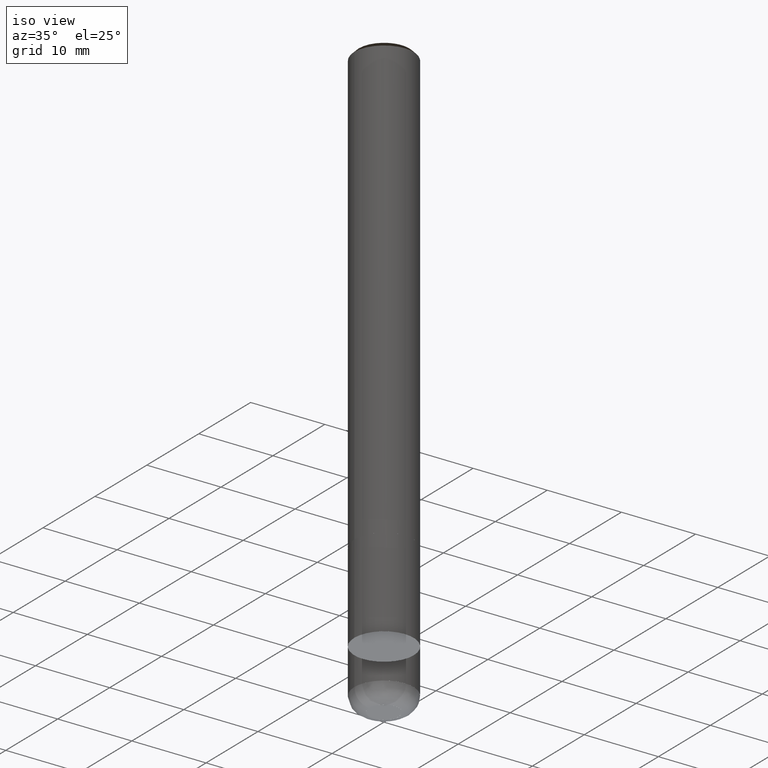
[diagram: clean part render]
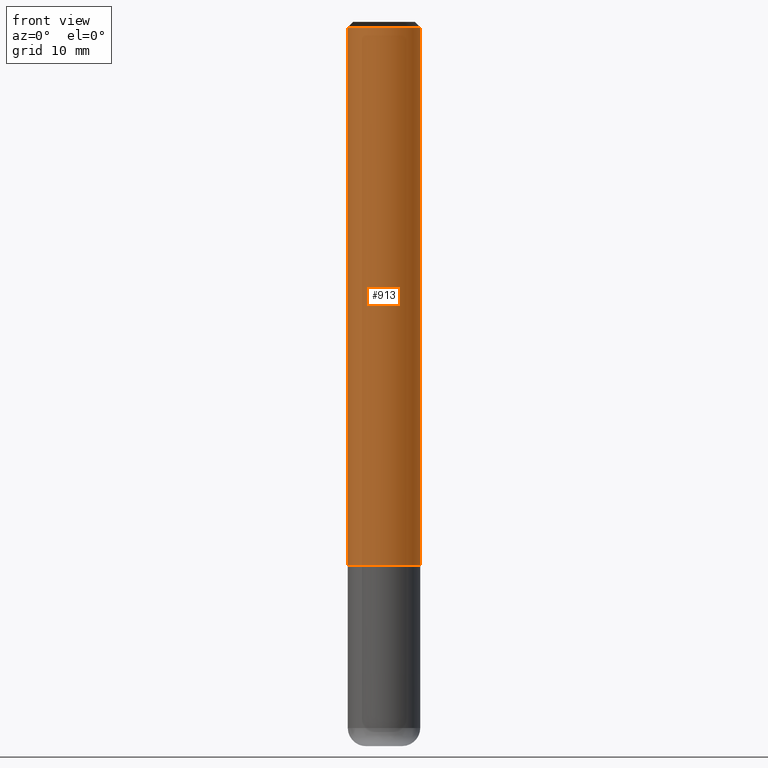
[diagram: tour spotlight — one face highlighted and labeled with its STEP entity id]
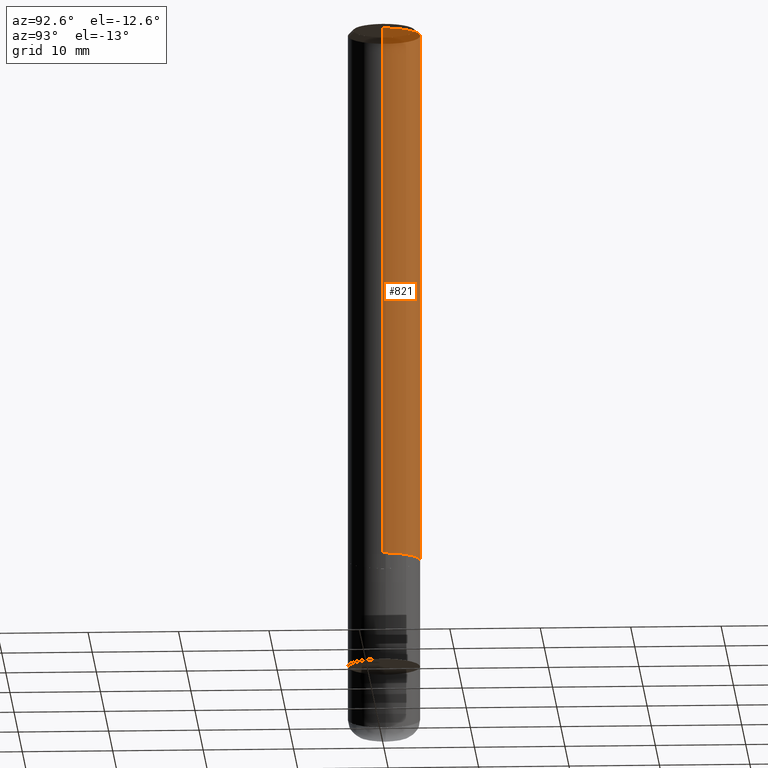
[diagram: tour spotlight — one face highlighted and labeled with its STEP entity id]
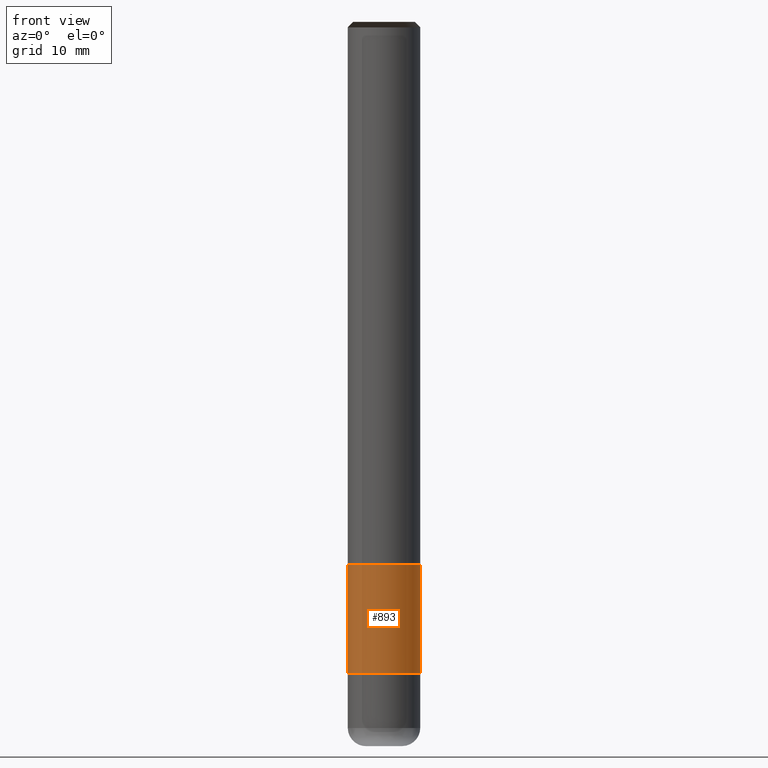
[diagram: tour spotlight — one face highlighted and labeled with its STEP entity id]
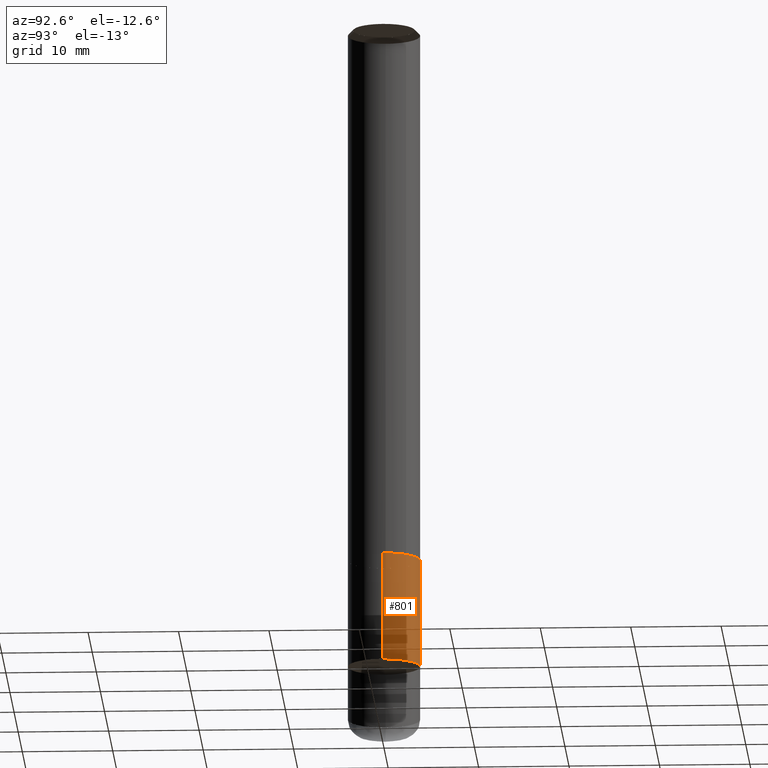
[diagram: tour spotlight — one face highlighted and labeled with its STEP entity id]
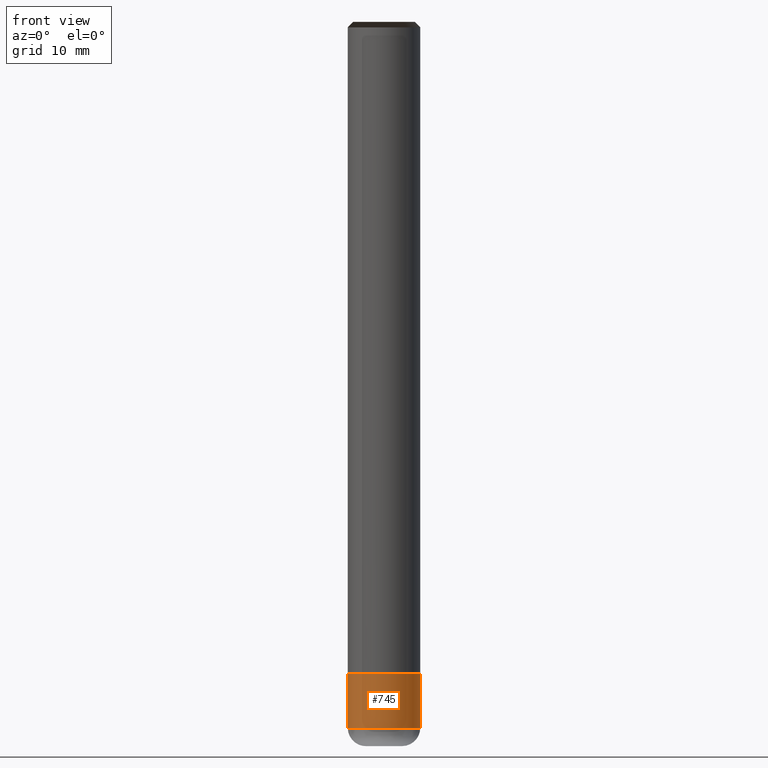
[diagram: tour spotlight — one face highlighted and labeled with its STEP entity id]
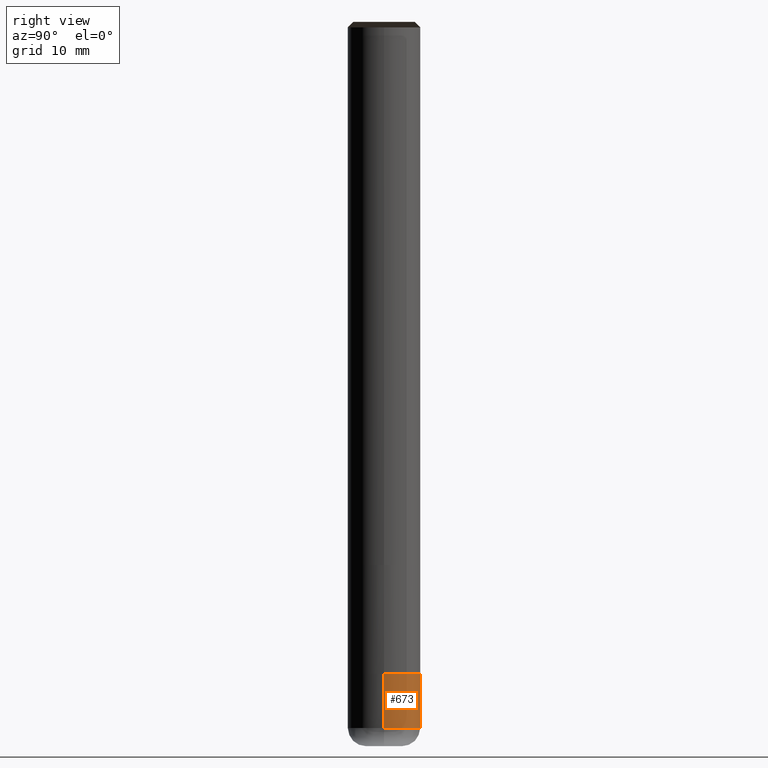
[diagram: tour spotlight — one face highlighted and labeled with its STEP entity id]
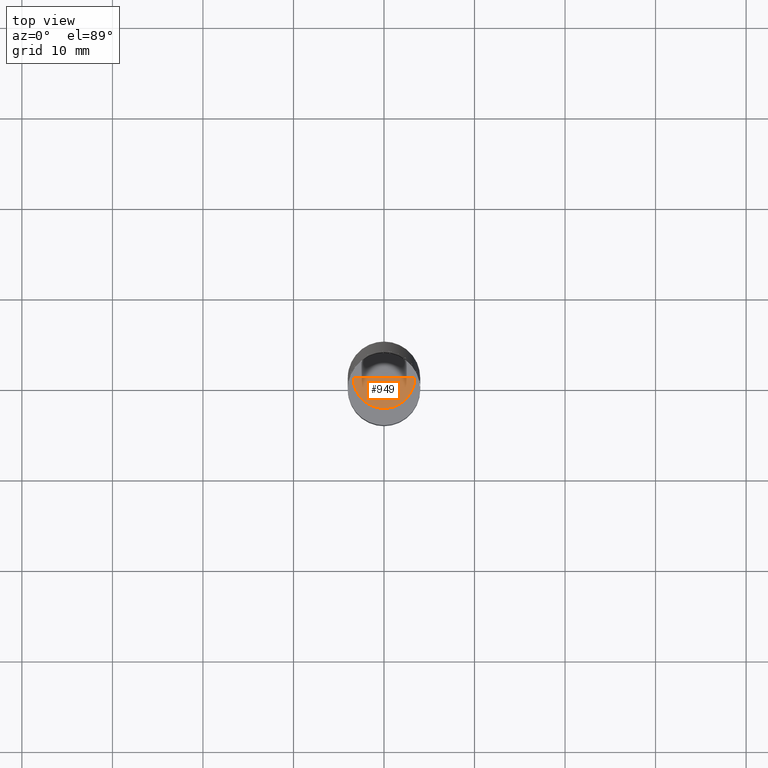
[diagram: tour spotlight — one face highlighted and labeled with its STEP entity id]
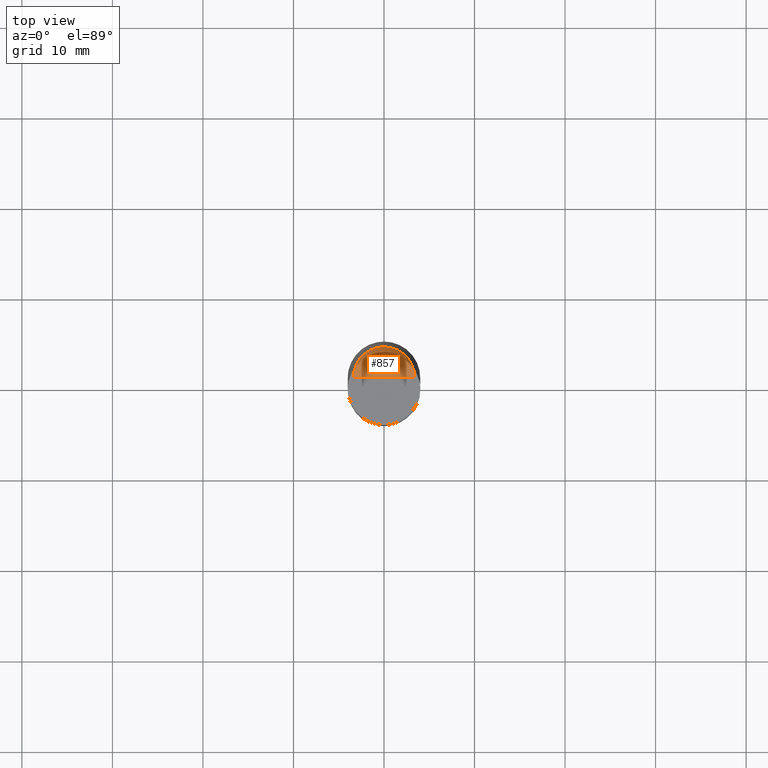
[diagram: tour spotlight — one face highlighted and labeled with its STEP entity id]
A machine part: a face-by-face anatomy tour. The part has 18 B-rep faces; the first image is the clean iso view, then the 8 largest visible faces are spotlighted one at a time (largest first), each with its STEP entity span.

Face 1 — front view, entity #913. In plain terms, the highlighted face is a freeform B-spline surface patch.
Definition (entity closure, byte-faithful):
#586=CARTESIAN_POINT('',(4.0,0.0,0.0));
#590=CARTESIAN_POINT('',(-4.0,0.0,0.0));
#591=CARTESIAN_POINT('',(4.0,0.0,59.4));
#595=CARTESIAN_POINT('',(-4.0,0.0,59.4));
#602=CARTESIAN_POINT('',(-4.0,-4.0,0.0));
#603=CARTESIAN_POINT('',(0.0,-4.0,0.0));
#604=CARTESIAN_POINT('',(4.0,-4.0,0.0));
#605=CARTESIAN_POINT('',(-4.0,-4.0,59.4));
#606=CARTESIAN_POINT('',(0.0,-4.0,59.4));
#607=CARTESIAN_POINT('',(4.0,-4.0,59.4));
#894=(
BOUNDED_SURFACE()
B_SPLINE_SURFACE(1,2,(
(#590,#602,#603,#604,#586),
(#595,#605,#606,#607,#591)
), .UNSPECIFIED.,.F.,.F.,.F.)
B_SPLINE_SURFACE_WITH_KNOTS((2,2),(3,2,3),(
0.0,1.0),(
0.0,0.5,1.0), .UNSPECIFIED.)
GEOMETRIC_REPRESENTATION_ITEM()
RATIONAL_B_SPLINE_SURFACE(((1.0,0.707106781187,1.0,0.707106781187,1.0),
(1.0,0.707106781187,1.0,0.707106781187,1.0)
))
REPRESENTATION_ITEM('')
SURFACE()
);
#895=(
BOUNDED_CURVE()
B_SPLINE_CURVE(1,(#595,#590),.UNSPECIFIED.,.F.,.F.)
B_SPLINE_CURVE_WITH_KNOTS((2,2),
(0.0,1.0),.UNSPECIFIED.)
CURVE()
GEOMETRIC_REPRESENTATION_ITEM()
RATIONAL_B_SPLINE_CURVE((1.0,1.0))
REPRESENTATION_ITEM('')
);
#896=(
BOUNDED_CURVE()
B_SPLINE_CURVE(2,(#590,#602,#603,#604,#586),.UNSPECIFIED.,.F.,.F.)
B_SPLINE_CURVE_WITH_KNOTS((3,2,3),
(0.0,0.5,1.0),.UNSPECIFIED.)
CURVE()
GEOMETRIC_REPRESENTATION_ITEM()
RATIONAL_B_SPLINE_CURVE((1.0,0.707106781187,1.0,0.707106781187,1.0))
REPRESENTATION_ITEM('')
);
#897=(
BOUNDED_CURVE()
B_SPLINE_CURVE(1,(#586,#591),.UNSPECIFIED.,.F.,.F.)
B_SPLINE_CURVE_WITH_KNOTS((2,2),
(0.0,1.0),.UNSPECIFIED.)
CURVE()
GEOMETRIC_REPRESENTATION_ITEM()
RATIONAL_B_SPLINE_CURVE((1.0,1.0))
REPRESENTATION_ITEM('')
);
#898=(
BOUNDED_CURVE()
B_SPLINE_CURVE(2,(#591,#607,#606,#605,#595),.UNSPECIFIED.,.F.,.F.)
B_SPLINE_CURVE_WITH_KNOTS((3,2,3),
(0.0,0.5,1.0),.UNSPECIFIED.)
CURVE()
GEOMETRIC_REPRESENTATION_ITEM()
RATIONAL_B_SPLINE_CURVE((1.0,0.707106781187,1.0,0.707106781187,1.0))
REPRESENTATION_ITEM('')
);
#899=VERTEX_POINT('',#586);
#900=VERTEX_POINT('',#590);
#901=VERTEX_POINT('',#591);
#902=VERTEX_POINT('',#595);
#903=EDGE_CURVE('',#902,#900,#895,.T.);
#904=EDGE_CURVE('',#900,#899,#896,.T.);
#905=EDGE_CURVE('',#899,#901,#897,.T.);
#906=EDGE_CURVE('',#901,#902,#898,.T.);
#907=ORIENTED_EDGE('',*,*,#903,.T.);
#908=ORIENTED_EDGE('',*,*,#904,.T.);
#909=ORIENTED_EDGE('',*,*,#905,.T.);
#910=ORIENTED_EDGE('',*,*,#906,.T.);
#911=EDGE_LOOP('',(#907,#908,#909,#910));
#912=FACE_OUTER_BOUND('',#911,.T.);
#913=ADVANCED_FACE('',(#912),#894,.T.);

Face 2 — auxiliary view, entity #821. In plain terms, the highlighted face is a freeform B-spline surface patch.
Definition (entity closure, byte-faithful):
#586=CARTESIAN_POINT('',(4.0,0.0,0.0));
#587=CARTESIAN_POINT('',(4.0,4.0,0.0));
#588=CARTESIAN_POINT('',(0.0,4.0,0.0));
#589=CARTESIAN_POINT('',(-4.0,4.0,0.0));
#590=CARTESIAN_POINT('',(-4.0,0.0,0.0));
#591=CARTESIAN_POINT('',(4.0,0.0,59.4));
#592=CARTESIAN_POINT('',(4.0,4.0,59.4));
#593=CARTESIAN_POINT('',(0.0,4.0,59.4));
#594=CARTESIAN_POINT('',(-4.0,4.0,59.4));
#595=CARTESIAN_POINT('',(-4.0,0.0,59.4));
#802=(
BOUNDED_SURFACE()
B_SPLINE_SURFACE(1,2,(
(#586,#587,#588,#589,#590),
(#591,#592,#593,#594,#595)
), .UNSPECIFIED.,.F.,.F.,.F.)
B_SPLINE_SURFACE_WITH_KNOTS((2,2),(3,2,3),(
0.0,1.0),(
0.0,0.5,1.0), .UNSPECIFIED.)
GEOMETRIC_REPRESENTATION_ITEM()
RATIONAL_B_SPLINE_SURFACE(((1.0,0.707106781187,1.0,0.707106781187,1.0),
(1.0,0.707106781187,1.0,0.707106781187,1.0)
))
REPRESENTATION_ITEM('')
SURFACE()
);
#803=(
BOUNDED_CURVE()
B_SPLINE_CURVE(2,(#591,#592,#593,#594,#595),.UNSPECIFIED.,.F.,.F.)
B_SPLINE_CURVE_WITH_KNOTS((3,2,3),
(0.0,0.5,1.0),.UNSPECIFIED.)
CURVE()
GEOMETRIC_REPRESENTATION_ITEM()
RATIONAL_B_SPLINE_CURVE((1.0,0.707106781187,1.0,0.707106781187,1.0))
REPRESENTATION_ITEM('')
);
#804=(
BOUNDED_CURVE()
B_SPLINE_CURVE(1,(#595,#590),.UNSPECIFIED.,.F.,.F.)
B_SPLINE_CURVE_WITH_KNOTS((2,2),
(0.0,1.0),.UNSPECIFIED.)
CURVE()
GEOMETRIC_REPRESENTATION_ITEM()
RATIONAL_B_SPLINE_CURVE((1.0,1.0))
REPRESENTATION_ITEM('')
);
#805=(
BOUNDED_CURVE()
B_SPLINE_CURVE(2,(#590,#589,#588,#587,#586),.UNSPECIFIED.,.F.,.F.)
B_SPLINE_CURVE_WITH_KNOTS((3,2,3),
(0.0,0.5,1.0),.UNSPECIFIED.)
CURVE()
GEOMETRIC_REPRESENTATION_ITEM()
RATIONAL_B_SPLINE_CURVE((1.0,0.707106781187,1.0,0.707106781187,1.0))
REPRESENTATION_ITEM('')
);
#806=(
BOUNDED_CURVE()
B_SPLINE_CURVE(1,(#586,#591),.UNSPECIFIED.,.F.,.F.)
B_SPLINE_CURVE_WITH_KNOTS((2,2),
(0.0,1.0),.UNSPECIFIED.)
CURVE()
GEOMETRIC_REPRESENTATION_ITEM()
RATIONAL_B_SPLINE_CURVE((1.0,1.0))
REPRESENTATION_ITEM('')
);
#807=VERTEX_POINT('',#586);
#808=VERTEX_POINT('',#590);
#809=VERTEX_POINT('',#591);
#810=VERTEX_POINT('',#595);
#811=EDGE_CURVE('',#809,#810,#803,.T.);
#812=EDGE_CURVE('',#810,#808,#804,.T.);
#813=EDGE_CURVE('',#808,#807,#805,.T.);
#814=EDGE_CURVE('',#807,#809,#806,.T.);
#815=ORIENTED_EDGE('',*,*,#811,.T.);
#816=ORIENTED_EDGE('',*,*,#812,.T.);
#817=ORIENTED_EDGE('',*,*,#813,.T.);
#818=ORIENTED_EDGE('',*,*,#814,.T.);
#819=EDGE_LOOP('',(#815,#816,#817,#818));
#820=FACE_OUTER_BOUND('',#819,.T.);
#821=ADVANCED_FACE('',(#820),#802,.T.);

Face 3 — front view, entity #893. In plain terms, the highlighted face is a freeform B-spline surface patch.
Definition (entity closure, byte-faithful):
#562=CARTESIAN_POINT('',(4.0,0.0,-12.0));
#566=CARTESIAN_POINT('',(-4.0,0.0,-12.0));
#583=CARTESIAN_POINT('',(-4.0,-4.0,-12.0));
#584=CARTESIAN_POINT('',(0.0,-4.0,-12.0));
#585=CARTESIAN_POINT('',(4.0,-4.0,-12.0));
#586=CARTESIAN_POINT('',(4.0,0.0,0.0));
#590=CARTESIAN_POINT('',(-4.0,0.0,0.0));
#602=CARTESIAN_POINT('',(-4.0,-4.0,0.0));
#603=CARTESIAN_POINT('',(0.0,-4.0,0.0));
#604=CARTESIAN_POINT('',(4.0,-4.0,0.0));
#874=(
BOUNDED_SURFACE()
B_SPLINE_SURFACE(1,2,(
(#566,#583,#584,#585,#562),
(#590,#602,#603,#604,#586)
), .UNSPECIFIED.,.F.,.F.,.F.)
B_SPLINE_SURFACE_WITH_KNOTS((2,2),(3,2,3),(
0.0,1.0),(
0.0,0.5,1.0), .UNSPECIFIED.)
GEOMETRIC_REPRESENTATION_ITEM()
RATIONAL_B_SPLINE_SURFACE(((1.0,0.707106781187,1.0,0.707106781187,1.0),
(1.0,0.707106781187,1.0,0.707106781187,1.0)
))
REPRESENTATION_ITEM('')
SURFACE()
);
#875=(
BOUNDED_CURVE()
B_SPLINE_CURVE(1,(#590,#566),.UNSPECIFIED.,.F.,.F.)
B_SPLINE_CURVE_WITH_KNOTS((2,2),
(0.0,1.0),.UNSPECIFIED.)
CURVE()
GEOMETRIC_REPRESENTATION_ITEM()
RATIONAL_B_SPLINE_CURVE((1.0,1.0))
REPRESENTATION_ITEM('')
);
#876=(
BOUNDED_CURVE()
B_SPLINE_CURVE(2,(#566,#583,#584,#585,#562),.UNSPECIFIED.,.F.,.F.)
B_SPLINE_CURVE_WITH_KNOTS((3,2,3),
(0.0,0.5,1.0),.UNSPECIFIED.)
CURVE()
GEOMETRIC_REPRESENTATION_ITEM()
RATIONAL_B_SPLINE_CURVE((1.0,0.707106781187,1.0,0.707106781187,1.0))
REPRESENTATION_ITEM('')
);
#877=(
BOUNDED_CURVE()
B_SPLINE_CURVE(1,(#562,#586),.UNSPECIFIED.,.F.,.F.)
B_SPLINE_CURVE_WITH_KNOTS((2,2),
(0.0,1.0),.UNSPECIFIED.)
CURVE()
GEOMETRIC_REPRESENTATION_ITEM()
RATIONAL_B_SPLINE_CURVE((1.0,1.0))
REPRESENTATION_ITEM('')
);
#878=(
BOUNDED_CURVE()
B_SPLINE_CURVE(2,(#586,#604,#603,#602,#590),.UNSPECIFIED.,.F.,.F.)
B_SPLINE_CURVE_WITH_KNOTS((3,2,3),
(0.0,0.5,1.0),.UNSPECIFIED.)
CURVE()
GEOMETRIC_REPRESENTATION_ITEM()
RATIONAL_B_SPLINE_CURVE((1.0,0.707106781187,1.0,0.707106781187,1.0))
REPRESENTATION_ITEM('')
);
#879=VERTEX_POINT('',#562);
#880=VERTEX_POINT('',#566);
#881=VERTEX_POINT('',#586);
#882=VERTEX_POINT('',#590);
#883=EDGE_CURVE('',#882,#880,#875,.T.);
#884=EDGE_CURVE('',#880,#879,#876,.T.);
#885=EDGE_CURVE('',#879,#881,#877,.T.);
#886=EDGE_CURVE('',#881,#882,#878,.T.);
#887=ORIENTED_EDGE('',*,*,#883,.T.);
#888=ORIENTED_EDGE('',*,*,#884,.T.);
#889=ORIENTED_EDGE('',*,*,#885,.T.);
#890=ORIENTED_EDGE('',*,*,#886,.T.);
#891=EDGE_LOOP('',(#887,#888,#889,#890));
#892=FACE_OUTER_BOUND('',#891,.T.);
#893=ADVANCED_FACE('',(#892),#874,.T.);

Face 4 — auxiliary view, entity #801. In plain terms, the highlighted face is a freeform B-spline surface patch.
Definition (entity closure, byte-faithful):
#562=CARTESIAN_POINT('',(4.0,0.0,-12.0));
#563=CARTESIAN_POINT('',(4.0,4.0,-12.0));
#564=CARTESIAN_POINT('',(0.0,4.0,-12.0));
#565=CARTESIAN_POINT('',(-4.0,4.0,-12.0));
#566=CARTESIAN_POINT('',(-4.0,0.0,-12.0));
#586=CARTESIAN_POINT('',(4.0,0.0,0.0));
#587=CARTESIAN_POINT('',(4.0,4.0,0.0));
#588=CARTESIAN_POINT('',(0.0,4.0,0.0));
#589=CARTESIAN_POINT('',(-4.0,4.0,0.0));
#590=CARTESIAN_POINT('',(-4.0,0.0,0.0));
#782=(
BOUNDED_SURFACE()
B_SPLINE_SURFACE(1,2,(
(#562,#563,#564,#565,#566),
(#586,#587,#588,#589,#590)
), .UNSPECIFIED.,.F.,.F.,.F.)
B_SPLINE_SURFACE_WITH_KNOTS((2,2),(3,2,3),(
0.0,1.0),(
0.0,0.5,1.0), .UNSPECIFIED.)
GEOMETRIC_REPRESENTATION_ITEM()
RATIONAL_B_SPLINE_SURFACE(((1.0,0.707106781187,1.0,0.707106781187,1.0),
(1.0,0.707106781187,1.0,0.707106781187,1.0)
))
REPRESENTATION_ITEM('')
SURFACE()
);
#783=(
BOUNDED_CURVE()
B_SPLINE_CURVE(2,(#586,#587,#588,#589,#590),.UNSPECIFIED.,.F.,.F.)
B_SPLINE_CURVE_WITH_KNOTS((3,2,3),
(0.0,0.5,1.0),.UNSPECIFIED.)
CURVE()
GEOMETRIC_REPRESENTATION_ITEM()
RATIONAL_B_SPLINE_CURVE((1.0,0.707106781187,1.0,0.707106781187,1.0))
REPRESENTATION_ITEM('')
);
#784=(
BOUNDED_CURVE()
B_SPLINE_CURVE(1,(#590,#566),.UNSPECIFIED.,.F.,.F.)
B_SPLINE_CURVE_WITH_KNOTS((2,2),
(0.0,1.0),.UNSPECIFIED.)
CURVE()
GEOMETRIC_REPRESENTATION_ITEM()
RATIONAL_B_SPLINE_CURVE((1.0,1.0))
REPRESENTATION_ITEM('')
);
#785=(
BOUNDED_CURVE()
B_SPLINE_CURVE(2,(#566,#565,#564,#563,#562),.UNSPECIFIED.,.F.,.F.)
B_SPLINE_CURVE_WITH_KNOTS((3,2,3),
(0.0,0.5,1.0),.UNSPECIFIED.)
CURVE()
GEOMETRIC_REPRESENTATION_ITEM()
RATIONAL_B_SPLINE_CURVE((1.0,0.707106781187,1.0,0.707106781187,1.0))
REPRESENTATION_ITEM('')
);
#786=(
BOUNDED_CURVE()
B_SPLINE_CURVE(1,(#562,#586),.UNSPECIFIED.,.F.,.F.)
B_SPLINE_CURVE_WITH_KNOTS((2,2),
(0.0,1.0),.UNSPECIFIED.)
CURVE()
GEOMETRIC_REPRESENTATION_ITEM()
RATIONAL_B_SPLINE_CURVE((1.0,1.0))
REPRESENTATION_ITEM('')
);
#787=VERTEX_POINT('',#562);
#788=VERTEX_POINT('',#566);
#789=VERTEX_POINT('',#586);
#790=VERTEX_POINT('',#590);
#791=EDGE_CURVE('',#789,#790,#783,.T.);
#792=EDGE_CURVE('',#790,#788,#784,.T.);
#793=EDGE_CURVE('',#788,#787,#785,.T.);
#794=EDGE_CURVE('',#787,#789,#786,.T.);
#795=ORIENTED_EDGE('',*,*,#791,.T.);
#796=ORIENTED_EDGE('',*,*,#792,.T.);
#797=ORIENTED_EDGE('',*,*,#793,.T.);
#798=ORIENTED_EDGE('',*,*,#794,.T.);
#799=EDGE_LOOP('',(#795,#796,#797,#798));
#800=FACE_OUTER_BOUND('',#799,.T.);
#801=ADVANCED_FACE('',(#800),#782,.T.);

Face 5 — front view, entity #745. In plain terms, the highlighted face is a freeform B-spline surface patch.
Definition (entity closure, byte-faithful):
#557=CARTESIAN_POINT('',(4.0,0.0,-18.0));
#561=CARTESIAN_POINT('',(-4.0,0.0,-18.0));
#562=CARTESIAN_POINT('',(4.0,0.0,-12.0));
#566=CARTESIAN_POINT('',(-4.0,0.0,-12.0));
#580=CARTESIAN_POINT('',(-4.0,-4.0,-18.0));
#581=CARTESIAN_POINT('',(0.0,-4.0,-18.0));
#582=CARTESIAN_POINT('',(4.0,-4.0,-18.0));
#583=CARTESIAN_POINT('',(-4.0,-4.0,-12.0));
#584=CARTESIAN_POINT('',(0.0,-4.0,-12.0));
#585=CARTESIAN_POINT('',(4.0,-4.0,-12.0));
#726=(
BOUNDED_SURFACE()
B_SPLINE_SURFACE(1,2,(
(#561,#580,#581,#582,#557),
(#566,#583,#584,#585,#562)
), .UNSPECIFIED.,.F.,.F.,.F.)
B_SPLINE_SURFACE_WITH_KNOTS((2,2),(3,2,3),(
0.0,1.0),(
0.0,0.5,1.0), .UNSPECIFIED.)
GEOMETRIC_REPRESENTATION_ITEM()
RATIONAL_B_SPLINE_SURFACE(((1.0,0.707106781187,1.0,0.707106781187,1.0),
(1.0,0.707106781187,1.0,0.707106781187,1.0)
))
REPRESENTATION_ITEM('')
SURFACE()
);
#727=(
BOUNDED_CURVE()
B_SPLINE_CURVE(1,(#566,#561),.UNSPECIFIED.,.F.,.F.)
B_SPLINE_CURVE_WITH_KNOTS((2,2),
(0.0,1.0),.UNSPECIFIED.)
CURVE()
GEOMETRIC_REPRESENTATION_ITEM()
RATIONAL_B_SPLINE_CURVE((1.0,1.0))
REPRESENTATION_ITEM('')
);
#728=(
BOUNDED_CURVE()
B_SPLINE_CURVE(2,(#561,#580,#581,#582,#557),.UNSPECIFIED.,.F.,.F.)
B_SPLINE_CURVE_WITH_KNOTS((3,2,3),
(0.0,0.5,1.0),.UNSPECIFIED.)
CURVE()
GEOMETRIC_REPRESENTATION_ITEM()
RATIONAL_B_SPLINE_CURVE((1.0,0.707106781187,1.0,0.707106781187,1.0))
REPRESENTATION_ITEM('')
);
#729=(
BOUNDED_CURVE()
B_SPLINE_CURVE(1,(#557,#562),.UNSPECIFIED.,.F.,.F.)
B_SPLINE_CURVE_WITH_KNOTS((2,2),
(0.0,1.0),.UNSPECIFIED.)
CURVE()
GEOMETRIC_REPRESENTATION_ITEM()
RATIONAL_B_SPLINE_CURVE((1.0,1.0))
REPRESENTATION_ITEM('')
);
#730=(
BOUNDED_CURVE()
B_SPLINE_CURVE(2,(#562,#585,#584,#583,#566),.UNSPECIFIED.,.F.,.F.)
B_SPLINE_CURVE_WITH_KNOTS((3,2,3),
(0.0,0.5,1.0),.UNSPECIFIED.)
CURVE()
GEOMETRIC_REPRESENTATION_ITEM()
RATIONAL_B_SPLINE_CURVE((1.0,0.707106781187,1.0,0.707106781187,1.0))
REPRESENTATION_ITEM('')
);
#731=VERTEX_POINT('',#557);
#732=VERTEX_POINT('',#561);
#733=VERTEX_POINT('',#562);
#734=VERTEX_POINT('',#566);
#735=EDGE_CURVE('',#734,#732,#727,.T.);
#736=EDGE_CURVE('',#732,#731,#728,.T.);
#737=EDGE_CURVE('',#731,#733,#729,.T.);
#738=EDGE_CURVE('',#733,#734,#730,.T.);
#739=ORIENTED_EDGE('',*,*,#735,.T.);
#740=ORIENTED_EDGE('',*,*,#736,.T.);
#741=ORIENTED_EDGE('',*,*,#737,.T.);
#742=ORIENTED_EDGE('',*,*,#738,.T.);
#743=EDGE_LOOP('',(#739,#740,#741,#742));
#744=FACE_OUTER_BOUND('',#743,.T.);
#745=ADVANCED_FACE('',(#744),#726,.T.);

Face 6 — right view, entity #673. In plain terms, the highlighted face is a freeform B-spline surface patch.
Definition (entity closure, byte-faithful):
#557=CARTESIAN_POINT('',(4.0,0.0,-18.0));
#558=CARTESIAN_POINT('',(4.0,4.0,-18.0));
#559=CARTESIAN_POINT('',(0.0,4.0,-18.0));
#560=CARTESIAN_POINT('',(-4.0,4.0,-18.0));
#561=CARTESIAN_POINT('',(-4.0,0.0,-18.0));
#562=CARTESIAN_POINT('',(4.0,0.0,-12.0));
#563=CARTESIAN_POINT('',(4.0,4.0,-12.0));
#564=CARTESIAN_POINT('',(0.0,4.0,-12.0));
#565=CARTESIAN_POINT('',(-4.0,4.0,-12.0));
#566=CARTESIAN_POINT('',(-4.0,0.0,-12.0));
#654=(
BOUNDED_SURFACE()
B_SPLINE_SURFACE(1,2,(
(#557,#558,#559,#560,#561),
(#562,#563,#564,#565,#566)
), .UNSPECIFIED.,.F.,.F.,.F.)
B_SPLINE_SURFACE_WITH_KNOTS((2,2),(3,2,3),(
0.0,1.0),(
0.0,0.5,1.0), .UNSPECIFIED.)
GEOMETRIC_REPRESENTATION_ITEM()
RATIONAL_B_SPLINE_SURFACE(((1.0,0.707106781187,1.0,0.707106781187,1.0),
(1.0,0.707106781187,1.0,0.707106781187,1.0)
))
REPRESENTATION_ITEM('')
SURFACE()
);
#655=(
BOUNDED_CURVE()
B_SPLINE_CURVE(2,(#562,#563,#564,#565,#566),.UNSPECIFIED.,.F.,.F.)
B_SPLINE_CURVE_WITH_KNOTS((3,2,3),
(0.0,0.5,1.0),.UNSPECIFIED.)
CURVE()
GEOMETRIC_REPRESENTATION_ITEM()
RATIONAL_B_SPLINE_CURVE((1.0,0.707106781187,1.0,0.707106781187,1.0))
REPRESENTATION_ITEM('')
);
#656=(
BOUNDED_CURVE()
B_SPLINE_CURVE(1,(#566,#561),.UNSPECIFIED.,.F.,.F.)
B_SPLINE_CURVE_WITH_KNOTS((2,2),
(0.0,1.0),.UNSPECIFIED.)
CURVE()
GEOMETRIC_REPRESENTATION_ITEM()
RATIONAL_B_SPLINE_CURVE((1.0,1.0))
REPRESENTATION_ITEM('')
);
#657=(
BOUNDED_CURVE()
B_SPLINE_CURVE(2,(#561,#560,#559,#558,#557),.UNSPECIFIED.,.F.,.F.)
B_SPLINE_CURVE_WITH_KNOTS((3,2,3),
(0.0,0.5,1.0),.UNSPECIFIED.)
CURVE()
GEOMETRIC_REPRESENTATION_ITEM()
RATIONAL_B_SPLINE_CURVE((1.0,0.707106781187,1.0,0.707106781187,1.0))
REPRESENTATION_ITEM('')
);
#658=(
BOUNDED_CURVE()
B_SPLINE_CURVE(1,(#557,#562),.UNSPECIFIED.,.F.,.F.)
B_SPLINE_CURVE_WITH_KNOTS((2,2),
(0.0,1.0),.UNSPECIFIED.)
CURVE()
GEOMETRIC_REPRESENTATION_ITEM()
RATIONAL_B_SPLINE_CURVE((1.0,1.0))
REPRESENTATION_ITEM('')
);
#659=VERTEX_POINT('',#557);
#660=VERTEX_POINT('',#561);
#661=VERTEX_POINT('',#562);
#662=VERTEX_POINT('',#566);
#663=EDGE_CURVE('',#661,#662,#655,.T.);
#664=EDGE_CURVE('',#662,#660,#656,.T.);
#665=EDGE_CURVE('',#660,#659,#657,.T.);
#666=EDGE_CURVE('',#659,#661,#658,.T.);
#667=ORIENTED_EDGE('',*,*,#663,.T.);
#668=ORIENTED_EDGE('',*,*,#664,.T.);
#669=ORIENTED_EDGE('',*,*,#665,.T.);
#670=ORIENTED_EDGE('',*,*,#666,.T.);
#671=EDGE_LOOP('',(#667,#668,#669,#670));
#672=FACE_OUTER_BOUND('',#671,.T.);
#673=ADVANCED_FACE('',(#672),#654,.T.);

Face 7 — top view, entity #949. In plain terms, the highlighted face is a freeform B-spline surface patch.
Definition (entity closure, byte-faithful):
#596=CARTESIAN_POINT('',(3.4,0.0,60.0));
#600=CARTESIAN_POINT('',(-3.4,0.0,60.0));
#601=CARTESIAN_POINT('',(0.0,0.0,60.0));
#608=CARTESIAN_POINT('',(-3.4,-3.4,60.0));
#609=CARTESIAN_POINT('',(0.0,-3.4,60.0));
#610=CARTESIAN_POINT('',(3.4,-3.4,60.0));
#934=(
BOUNDED_SURFACE()
B_SPLINE_SURFACE(1,2,(
(#600,#608,#609,#610,#596),
(#601,#601,#601,#601,#601)
), .UNSPECIFIED.,.F.,.F.,.F.)
B_SPLINE_SURFACE_WITH_KNOTS((2,2),(3,2,3),(
0.0,1.0),(
0.0,0.5,1.0), .UNSPECIFIED.)
GEOMETRIC_REPRESENTATION_ITEM()
RATIONAL_B_SPLINE_SURFACE(((1.0,0.707106781187,1.0,0.707106781187,1.0),
(1.0,0.707106781187,1.0,0.707106781187,1.0)
))
REPRESENTATION_ITEM('')
SURFACE()
);
#935=(
BOUNDED_CURVE()
B_SPLINE_CURVE(1,(#601,#596),.UNSPECIFIED.,.F.,.F.)
B_SPLINE_CURVE_WITH_KNOTS((2,2),
(0.0,1.0),.UNSPECIFIED.)
CURVE()
GEOMETRIC_REPRESENTATION_ITEM()
RATIONAL_B_SPLINE_CURVE((1.0,1.0))
REPRESENTATION_ITEM('')
);
#936=(
BOUNDED_CURVE()
B_SPLINE_CURVE(2,(#596,#610,#609,#608,#600),.UNSPECIFIED.,.F.,.F.)
B_SPLINE_CURVE_WITH_KNOTS((3,2,3),
(0.0,0.5,1.0),.UNSPECIFIED.)
CURVE()
GEOMETRIC_REPRESENTATION_ITEM()
RATIONAL_B_SPLINE_CURVE((1.0,0.707106781187,1.0,0.707106781187,1.0))
REPRESENTATION_ITEM('')
);
#937=(
BOUNDED_CURVE()
B_SPLINE_CURVE(1,(#600,#601),.UNSPECIFIED.,.F.,.F.)
B_SPLINE_CURVE_WITH_KNOTS((2,2),
(0.0,1.0),.UNSPECIFIED.)
CURVE()
GEOMETRIC_REPRESENTATION_ITEM()
RATIONAL_B_SPLINE_CURVE((1.0,1.0))
REPRESENTATION_ITEM('')
);
#938=VERTEX_POINT('',#596);
#939=VERTEX_POINT('',#600);
#940=VERTEX_POINT('',#601);
#941=EDGE_CURVE('',#940,#938,#935,.T.);
#942=EDGE_CURVE('',#938,#939,#936,.T.);
#943=EDGE_CURVE('',#939,#940,#937,.T.);
#944=ORIENTED_EDGE('',*,*,#941,.T.);
#945=ORIENTED_EDGE('',*,*,#942,.T.);
#946=ORIENTED_EDGE('',*,*,#943,.T.);
#947=EDGE_LOOP('',(#944,#945,#946));
#948=FACE_OUTER_BOUND('',#947,.T.);
#949=ADVANCED_FACE('',(#948),#934,.T.);

Face 8 — top view, entity #857. In plain terms, the highlighted face is a freeform B-spline surface patch.
Definition (entity closure, byte-faithful):
#596=CARTESIAN_POINT('',(3.4,0.0,60.0));
#597=CARTESIAN_POINT('',(3.4,3.4,60.0));
#598=CARTESIAN_POINT('',(0.0,3.4,60.0));
#599=CARTESIAN_POINT('',(-3.4,3.4,60.0));
#600=CARTESIAN_POINT('',(-3.4,0.0,60.0));
#601=CARTESIAN_POINT('',(0.0,0.0,60.0));
#842=(
BOUNDED_SURFACE()
B_SPLINE_SURFACE(1,2,(
(#596,#597,#598,#599,#600),
(#601,#601,#601,#601,#601)
), .UNSPECIFIED.,.F.,.F.,.F.)
B_SPLINE_SURFACE_WITH_KNOTS((2,2),(3,2,3),(
0.0,1.0),(
0.0,0.5,1.0), .UNSPECIFIED.)
GEOMETRIC_REPRESENTATION_ITEM()
RATIONAL_B_SPLINE_SURFACE(((1.0,0.707106781187,1.0,0.707106781187,1.0),
(1.0,0.707106781187,1.0,0.707106781187,1.0)
))
REPRESENTATION_ITEM('')
SURFACE()
);
#843=(
BOUNDED_CURVE()
B_SPLINE_CURVE(1,(#601,#596),.UNSPECIFIED.,.F.,.F.)
B_SPLINE_CURVE_WITH_KNOTS((2,2),
(0.0,1.0),.UNSPECIFIED.)
CURVE()
GEOMETRIC_REPRESENTATION_ITEM()
RATIONAL_B_SPLINE_CURVE((1.0,1.0))
REPRESENTATION_ITEM('')
);
#844=(
BOUNDED_CURVE()
B_SPLINE_CURVE(2,(#596,#597,#598,#599,#600),.UNSPECIFIED.,.F.,.F.)
B_SPLINE_CURVE_WITH_KNOTS((3,2,3),
(0.0,0.5,1.0),.UNSPECIFIED.)
CURVE()
GEOMETRIC_REPRESENTATION_ITEM()
RATIONAL_B_SPLINE_CURVE((1.0,0.707106781187,1.0,0.707106781187,1.0))
REPRESENTATION_ITEM('')
);
#845=(
BOUNDED_CURVE()
B_SPLINE_CURVE(1,(#600,#601),.UNSPECIFIED.,.F.,.F.)
B_SPLINE_CURVE_WITH_KNOTS((2,2),
(0.0,1.0),.UNSPECIFIED.)
CURVE()
GEOMETRIC_REPRESENTATION_ITEM()
RATIONAL_B_SPLINE_CURVE((1.0,1.0))
REPRESENTATION_ITEM('')
);
#846=VERTEX_POINT('',#596);
#847=VERTEX_POINT('',#600);
#848=VERTEX_POINT('',#601);
#849=EDGE_CURVE('',#848,#846,#843,.T.);
#850=EDGE_CURVE('',#846,#847,#844,.T.);
#851=EDGE_CURVE('',#847,#848,#845,.T.);
#852=ORIENTED_EDGE('',*,*,#849,.T.);
#853=ORIENTED_EDGE('',*,*,#850,.T.);
#854=ORIENTED_EDGE('',*,*,#851,.T.);
#855=EDGE_LOOP('',(#852,#853,#854));
#856=FACE_OUTER_BOUND('',#855,.T.);
#857=ADVANCED_FACE('',(#856),#842,.T.);